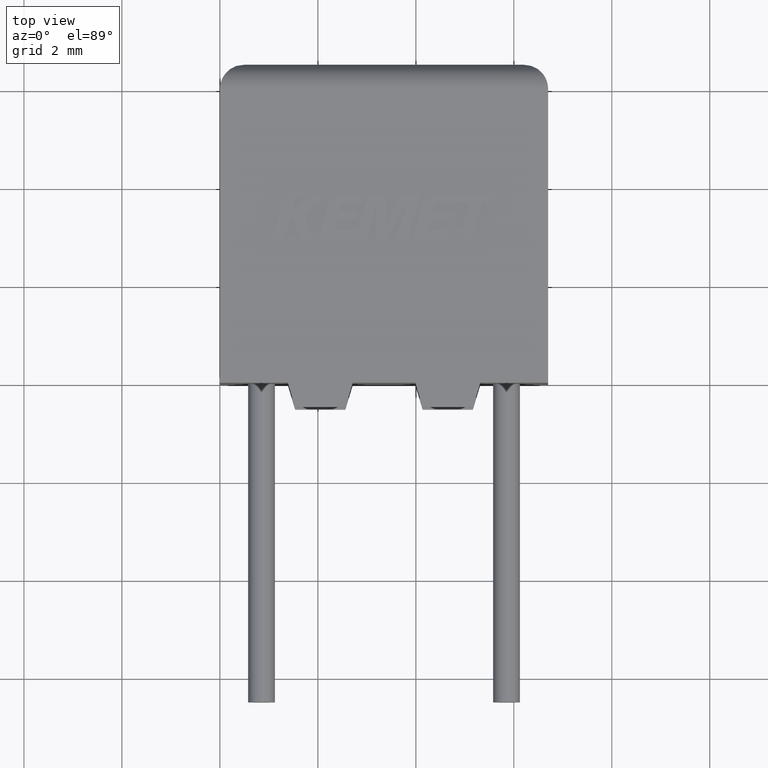
[diagram: clean part render]
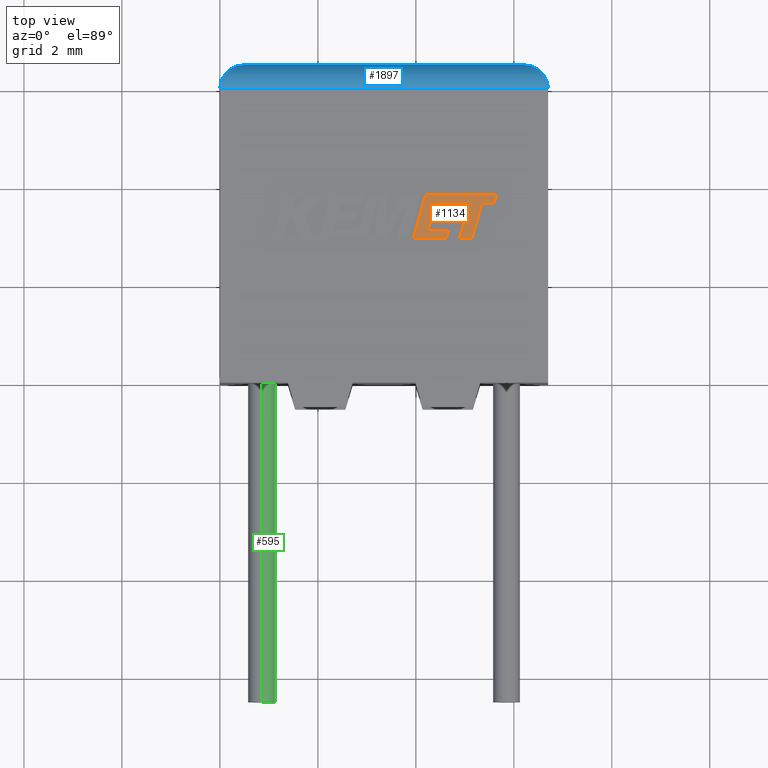
[diagram: same view with three faces highlighted in distinct colors, each labeled with its STEP entity id]
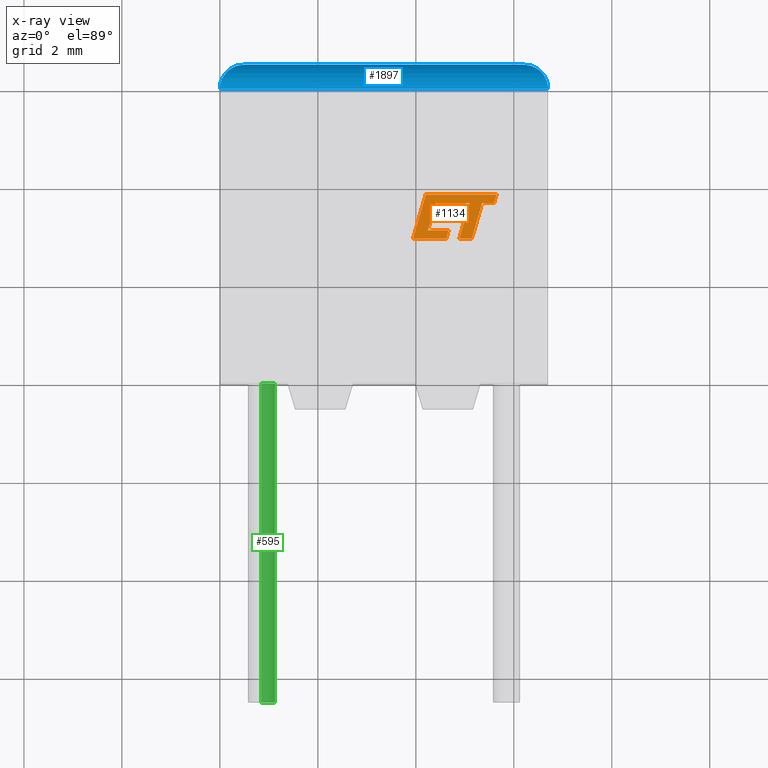
[diagram: x-ray of the same camera — body ghosted, the three highlighted faces saturated]
A machine part, top view with three faces highlighted in distinct colors.
The next image is the same camera in x-ray (body ghosted, the three faces saturated) — at least one of them is partly hidden behind the body in this view.
Their STEP definitions:

[orange] entity #1134 — the highlighted planar face has unit normal (0, 0, 1).
#14 = DIRECTION ( 'NONE',  ( 0.9999891854650020395, -0.004650693823678666954, 0.000000000000000000 ) ) ;
#93 = CARTESIAN_POINT ( 'NONE',  ( 4.359792918353027069, 3.501551121598226679, 3.004999999999999893 ) ) ;
#100 = EDGE_CURVE ( 'NONE', #2001, #218, #3031, .T. ) ;
#136 = DIRECTION ( 'NONE',  ( -1.000000000000000000, 0.000000000000000000, 0.000000000000000000 ) ) ;
#141 = VECTOR ( 'NONE', #3046, 1000.000000000000000 ) ;
#145 = VECTOR ( 'NONE', #1076, 1000.000000000000000 ) ;
#152 = VERTEX_POINT ( 'NONE', #644 ) ;
#157 = DIRECTION ( 'NONE',  ( -1.000000000000000000, 0.000000000000000000, 0.000000000000000000 ) ) ;
#184 = EDGE_CURVE ( 'NONE', #2309, #3203, #3111, .T. ) ;
#218 = VERTEX_POINT ( 'NONE', #624 ) ;
#230 = ORIENTED_EDGE ( 'NONE', *, *, #2054, .T. ) ;
#251 = CARTESIAN_POINT ( 'NONE',  ( 4.821213937587501164, 3.667891821823610510, 3.004999999999999893 ) ) ;
#273 = ORIENTED_EDGE ( 'NONE', *, *, #2510, .T. ) ;
#335 = DIRECTION ( 'NONE',  ( 1.000000000000000000, 0.000000000000000000, 0.000000000000000000 ) ) ;
#375 = ORIENTED_EDGE ( 'NONE', *, *, #184, .T. ) ;
#396 = DIRECTION ( 'NONE',  ( 0.9999999968487351953, -7.938847109813095698E-05, 0.000000000000000000 ) ) ;
#410 = LINE ( 'NONE', #1673, #940 ) ;
#445 = VERTEX_POINT ( 'NONE', #1681 ) ;
#463 = VECTOR ( 'NONE', #2645, 1000.000000000000000 ) ;
#468 = DIRECTION ( 'NONE',  ( 0.2746918797667246004, 0.9615323037684294638, 0.000000000000000000 ) ) ;
#499 = CARTESIAN_POINT ( 'NONE',  ( 4.698706481735150042, 3.335100893025698010, 3.004999999999999893 ) ) ;
#509 = ORIENTED_EDGE ( 'NONE', *, *, #1341, .T. ) ;
#526 = ORIENTED_EDGE ( 'NONE', *, *, #794, .T. ) ;
#543 = EDGE_CURVE ( 'NONE', #1899, #2935, #1973, .T. ) ;
#572 = CARTESIAN_POINT ( 'NONE',  ( 4.202334967772604735, 3.840497543485196008, 3.004999999999999893 ) ) ;
#607 = CARTESIAN_POINT ( 'NONE',  ( 4.886065671704187707, 2.939949999999972530, 3.004999999999999893 ) ) ;
#624 = CARTESIAN_POINT ( 'NONE',  ( 4.408533032661648754, 3.669052822299576189, 3.004999999999999893 ) ) ;
#639 = DIRECTION ( 'NONE',  ( -0.2763173343569911289, -0.9610664548998922863, 0.000000000000000000 ) ) ;
#644 = CARTESIAN_POINT ( 'NONE',  ( 4.698706481735150042, 3.335100893025698010, 3.004999999999999893 ) ) ;
#672 = PLANE ( 'NONE',  #2657 ) ;
#681 = ORIENTED_EDGE ( 'NONE', *, *, #1896, .T. ) ;
#725 = VECTOR ( 'NONE', #2265, 1000.000000000000114 ) ;
#794 = EDGE_CURVE ( 'NONE', #2821, #3113, #1252, .T. ) ;
#821 = CARTESIAN_POINT ( 'NONE',  ( 5.598024176641009042, 3.666598980641091909, 3.004999999999999893 ) ) ;
#845 = ORIENTED_EDGE ( 'NONE', *, *, #2734, .T. ) ;
#858 = ORIENTED_EDGE ( 'NONE', *, *, #1360, .T. ) ;
#860 = LINE ( 'NONE', #2609, #3142 ) ;
#865 = EDGE_CURVE ( 'NONE', #2434, #1207, #2728, .T. ) ;
#904 = CARTESIAN_POINT ( 'NONE',  ( 0.03041219601240493370, -2.057123217232910584, 3.004999999999999893 ) ) ;
#918 = CARTESIAN_POINT ( 'NONE',  ( 5.142597489070165118, 2.939949999999972530, 3.004999999999999893 ) ) ;
#930 = CARTESIAN_POINT ( 'NONE',  ( 4.672321103000238729, 3.111312574923809304, 3.004999999999999893 ) ) ;
#940 = VECTOR ( 'NONE', #396, 1000.000000000000114 ) ;
#950 = VECTOR ( 'NONE', #2159, 1000.000000000000000 ) ;
#952 = DIRECTION ( 'NONE',  ( 1.000000000000000000, 0.000000000000000000, 0.000000000000000000 ) ) ;
#979 = VECTOR ( 'NONE', #2166, 1000.000000000000114 ) ;
#1022 = CARTESIAN_POINT ( 'NONE',  ( 5.647999616669466150, 3.840497543485196008, 3.004999999999999893 ) ) ;
#1028 = EDGE_CURVE ( 'NONE', #2942, #2997, #2055, .T. ) ;
#1052 = VECTOR ( 'NONE', #639, 1000.000000000000114 ) ;
#1076 = DIRECTION ( 'NONE',  ( -1.000000000000000000, 0.000000000000000000, 0.000000000000000000 ) ) ;
#1100 = VECTOR ( 'NONE', #468, 1000.000000000000114 ) ;
#1131 = CARTESIAN_POINT ( 'NONE',  ( 3.943305903377329003, 2.939949999999972530, 3.004999999999999893 ) ) ;
#1134 = ADVANCED_FACE ( 'NONE', ( #3144 ), #672, .T. ) ;
#1146 = ORIENTED_EDGE ( 'NONE', *, *, #2869, .T. ) ;
#1188 = VERTEX_POINT ( 'NONE', #918 ) ;
#1207 = VERTEX_POINT ( 'NONE', #1468 ) ;
#1252 = LINE ( 'NONE', #1486, #1446 ) ;
#1313 = ORIENTED_EDGE ( 'NONE', *, *, #1028, .T. ) ;
#1333 = LINE ( 'NONE', #2601, #2823 ) ;
#1341 = EDGE_CURVE ( 'NONE', #1188, #1494, #3056, .T. ) ;
#1349 = LINE ( 'NONE', #1536, #145 ) ;
#1360 = EDGE_CURVE ( 'NONE', #2997, #2309, #1349, .T. ) ;
#1366 = CARTESIAN_POINT ( 'NONE',  ( 4.746258213481441501, 3.501551121598226679, 3.004999999999999893 ) ) ;
#1367 = CARTESIAN_POINT ( 'NONE',  ( 4.202334967772604735, 3.840497543485196008, 3.004999999999999893 ) ) ;
#1377 = LINE ( 'NONE', #930, #2826 ) ;
#1414 = CARTESIAN_POINT ( 'NONE',  ( 5.351462569925370616, 3.666618554790142426, 3.004999999999999893 ) ) ;
#1429 = LINE ( 'NONE', #1366, #3138 ) ;
#1446 = VECTOR ( 'NONE', #14, 1000.000000000000227 ) ;
#1449 = CARTESIAN_POINT ( 'NONE',  ( 4.359792918353027069, 3.501551121598226679, 3.004999999999999893 ) ) ;
#1468 = CARTESIAN_POINT ( 'NONE',  ( 4.312295950780125509, 3.335100893025698010, 3.004999999999999893 ) ) ;
#1484 = EDGE_CURVE ( 'NONE', #3203, #1899, #2881, .T. ) ;
#1486 = CARTESIAN_POINT ( 'NONE',  ( 4.821213937587501164, 3.667891821823610510, 3.004999999999999893 ) ) ;
#1494 = VERTEX_POINT ( 'NONE', #1414 ) ;
#1536 = CARTESIAN_POINT ( 'NONE',  ( 5.647999616669466150, 3.840497543485196008, 3.004999999999999893 ) ) ;
#1649 = CARTESIAN_POINT ( 'NONE',  ( 5.094990993150579683, 3.666618554792447693, 3.004999999999999893 ) ) ;
#1671 = DIRECTION ( 'NONE',  ( 0.000000000000000000, 0.000000000000000000, 1.000000000000000000 ) ) ;
#1673 = CARTESIAN_POINT ( 'NONE',  ( 5.351462569925370616, 3.666618554790142426, 3.004999999999999893 ) ) ;
#1681 = CARTESIAN_POINT ( 'NONE',  ( 4.746258213481441501, 3.501551121598226679, 3.004999999999999893 ) ) ;
#1712 = EDGE_LOOP ( 'NONE', ( #2273, #526, #845, #2237, #509, #230, #1313, #858, #375, #2023, #2918, #273, #3246, #681, #1146, #1755, #1912 ) ) ;
#1755 = ORIENTED_EDGE ( 'NONE', *, *, #2470, .T. ) ;
#1771 = VECTOR ( 'NONE', #1789, 1000.000000000000114 ) ;
#1789 = DIRECTION ( 'NONE',  ( 0.2793947940814911490, 0.9601763114346036909, 0.000000000000000000 ) ) ;
#1790 = CARTESIAN_POINT ( 'NONE',  ( 4.248408066114440551, 3.111312574923809304, 3.004999999999999893 ) ) ;
#1827 = LINE ( 'NONE', #2639, #950 ) ;
#1896 = EDGE_CURVE ( 'NONE', #1207, #152, #1333, .T. ) ;
#1899 = VERTEX_POINT ( 'NONE', #2358 ) ;
#1912 = ORIENTED_EDGE ( 'NONE', *, *, #100, .T. ) ;
#1973 = LINE ( 'NONE', #3233, #725 ) ;
#2001 = VERTEX_POINT ( 'NONE', #1449 ) ;
#2023 = ORIENTED_EDGE ( 'NONE', *, *, #1484, .T. ) ;
#2054 = EDGE_CURVE ( 'NONE', #1494, #2942, #410, .T. ) ;
#2055 = LINE ( 'NONE', #821, #141 ) ;
#2159 = DIRECTION ( 'NONE',  ( 1.000000000000000000, 0.000000000000000000, 0.000000000000000000 ) ) ;
#2166 = DIRECTION ( 'NONE',  ( -0.2764273280489772389, -0.9610348236706633962, 0.000000000000000000 ) ) ;
#2237 = ORIENTED_EDGE ( 'NONE', *, *, #3146, .T. ) ;
#2265 = DIRECTION ( 'NONE',  ( 0.2729786930695575209, 0.9620200793798622252, 0.000000000000000000 ) ) ;
#2273 = ORIENTED_EDGE ( 'NONE', *, *, #3195, .T. ) ;
#2278 = DIRECTION ( 'NONE',  ( 0.2745159998572696547, 0.9615825319869134580, 0.000000000000000000 ) ) ;
#2309 = VERTEX_POINT ( 'NONE', #572 ) ;
#2345 = CARTESIAN_POINT ( 'NONE',  ( 3.943305903377329003, 2.939949999999972530, 3.004999999999999893 ) ) ;
#2355 = VERTEX_POINT ( 'NONE', #607 ) ;
#2358 = CARTESIAN_POINT ( 'NONE',  ( 4.623695993455855024, 2.939949999999972530, 3.004999999999999893 ) ) ;
#2434 = VERTEX_POINT ( 'NONE', #2910 ) ;
#2470 = EDGE_CURVE ( 'NONE', #445, #2001, #1429, .T. ) ;
#2510 = EDGE_CURVE ( 'NONE', #2935, #2434, #1377, .T. ) ;
#2529 = CARTESIAN_POINT ( 'NONE',  ( 5.598024176641009042, 3.666598980641091909, 3.004999999999999893 ) ) ;
#2580 = DIRECTION ( 'NONE',  ( 0.2762437428917420279, 0.9610876102172793978, 0.000000000000000000 ) ) ;
#2601 = CARTESIAN_POINT ( 'NONE',  ( 4.312295950780125509, 3.335100893025698010, 3.004999999999999893 ) ) ;
#2605 = VECTOR ( 'NONE', #2580, 1000.000000000000114 ) ;
#2609 = CARTESIAN_POINT ( 'NONE',  ( 4.408533032661648754, 3.669052822299576189, 3.004999999999999893 ) ) ;
#2627 = DIRECTION ( 'NONE',  ( 0.9999960426590096541, -0.002813301676023192543, 0.000000000000000000 ) ) ;
#2639 = CARTESIAN_POINT ( 'NONE',  ( 4.886065671704187707, 2.939949999999972530, 3.004999999999999893 ) ) ;
#2645 = DIRECTION ( 'NONE',  ( 1.000000000000000000, 0.000000000000000000, 0.000000000000000000 ) ) ;
#2657 = AXIS2_PLACEMENT_3D ( 'NONE', #904, #1671, #952 ) ;
#2728 = LINE ( 'NONE', #1790, #3179 ) ;
#2732 = LINE ( 'NONE', #499, #1100 ) ;
#2734 = EDGE_CURVE ( 'NONE', #3113, #2355, #3154, .T. ) ;
#2778 = CARTESIAN_POINT ( 'NONE',  ( 4.672321103000238729, 3.111312574923809304, 3.004999999999999893 ) ) ;
#2786 = CARTESIAN_POINT ( 'NONE',  ( 5.142597489070165118, 2.939949999999972530, 3.004999999999999893 ) ) ;
#2821 = VERTEX_POINT ( 'NONE', #251 ) ;
#2823 = VECTOR ( 'NONE', #335, 1000.000000000000000 ) ;
#2826 = VECTOR ( 'NONE', #136, 1000.000000000000000 ) ;
#2869 = EDGE_CURVE ( 'NONE', #152, #445, #2732, .T. ) ;
#2881 = LINE ( 'NONE', #1131, #463 ) ;
#2910 = CARTESIAN_POINT ( 'NONE',  ( 4.248408066114440551, 3.111312574923809304, 3.004999999999999893 ) ) ;
#2918 = ORIENTED_EDGE ( 'NONE', *, *, #543, .T. ) ;
#2935 = VERTEX_POINT ( 'NONE', #2778 ) ;
#2942 = VERTEX_POINT ( 'NONE', #2529 ) ;
#2997 = VERTEX_POINT ( 'NONE', #1022 ) ;
#3031 = LINE ( 'NONE', #93, #1771 ) ;
#3046 = DIRECTION ( 'NONE',  ( 0.2762033010287925916, 0.9610992334305538121, 0.000000000000000000 ) ) ;
#3056 = LINE ( 'NONE', #2786, #2605 ) ;
#3111 = LINE ( 'NONE', #1367, #979 ) ;
#3113 = VERTEX_POINT ( 'NONE', #3115 ) ;
#3115 = CARTESIAN_POINT ( 'NONE',  ( 5.094990993150579683, 3.666618554792447693, 3.004999999999999893 ) ) ;
#3138 = VECTOR ( 'NONE', #157, 1000.000000000000000 ) ;
#3142 = VECTOR ( 'NONE', #2627, 999.9999999999998863 ) ;
#3144 = FACE_OUTER_BOUND ( 'NONE', #1712, .T. ) ;
#3146 = EDGE_CURVE ( 'NONE', #2355, #1188, #1827, .T. ) ;
#3154 = LINE ( 'NONE', #1649, #1052 ) ;
#3179 = VECTOR ( 'NONE', #2278, 1000.000000000000114 ) ;
#3195 = EDGE_CURVE ( 'NONE', #218, #2821, #860, .T. ) ;
#3203 = VERTEX_POINT ( 'NONE', #2345 ) ;
#3233 = CARTESIAN_POINT ( 'NONE',  ( 4.623695993455855024, 2.939949999999972530, 3.004999999999999893 ) ) ;
#3246 = ORIENTED_EDGE ( 'NONE', *, *, #865, .T. ) ;

[blue] entity #1897 — the highlighted cylindrical surface (edge-blend (fillet) strip) has radius 0.5 mm, axis along (-1, 0, 0).
#4 = ORIENTED_EDGE ( 'NONE', *, *, #825, .F. ) ;
#96 = CARTESIAN_POINT ( 'NONE',  ( 0.000000000000000000, 6.000000000000000000, 2.500000000000000000 ) ) ;
#382 = DIRECTION ( 'NONE',  ( -1.000000000000000000, 0.000000000000000000, 0.000000000000000000 ) ) ;
#746 = CARTESIAN_POINT ( 'NONE',  ( 6.700000000000001066, 6.292893218813451206, 3.000000000000000888 ) ) ;
#759 = LINE ( 'NONE', #3229, #2919 ) ;
#818 = CARTESIAN_POINT ( 'NONE',  ( 6.200000000000001066, 6.500000000000000000, 2.500000000000000000 ) ) ;
#825 = EDGE_CURVE ( 'NONE', #1115, #2268, #759, .T. ) ;
#851 =( BOUNDED_CURVE ( )  B_SPLINE_CURVE ( 3, ( #1656, #1692, #2947, #1166 ),
 .UNSPECIFIED., .F., .F. ) 
 B_SPLINE_CURVE_WITH_KNOTS ( ( 4, 4 ),
 ( 1.570796326794896780, 3.141592653589796669 ),
 .UNSPECIFIED. ) 
 CURVE ( )  GEOMETRIC_REPRESENTATION_ITEM ( )  RATIONAL_B_SPLINE_CURVE ( ( 1.000000000000000000, 0.8047378541243641603, 0.8047378541243641603, 1.000000000000000000 ) ) 
 REPRESENTATION_ITEM ( '' )  );
#908 = EDGE_CURVE ( 'NONE', #2268, #2428, #1860, .T. ) ;
#997 = VECTOR ( 'NONE', #1803, 1000.000000000000000 ) ;
#1044 = CARTESIAN_POINT ( 'NONE',  ( 0.000000000000000000, 5.999999999999998224, 3.000000000000000000 ) ) ;
#1115 = VERTEX_POINT ( 'NONE', #2371 ) ;
#1166 = CARTESIAN_POINT ( 'NONE',  ( 0.000000000000000000, 5.999999999999998224, 3.000000000000000000 ) ) ;
#1315 = LINE ( 'NONE', #1552, #997 ) ;
#1504 = CARTESIAN_POINT ( 'NONE',  ( 6.492893218813454048, 6.500000000000000888, 2.792893218813453426 ) ) ;
#1552 = CARTESIAN_POINT ( 'NONE',  ( 0.000000000000000000, 6.000000000000000000, 3.000000000000000000 ) ) ;
#1553 = VERTEX_POINT ( 'NONE', #1044 ) ;
#1656 = CARTESIAN_POINT ( 'NONE',  ( 0.5000000000000000000, 6.500000000000000000, 2.500000000000000000 ) ) ;
#1685 = EDGE_LOOP ( 'NONE', ( #1868, #2774, #2610, #4 ) ) ;
#1692 = CARTESIAN_POINT ( 'NONE',  ( 0.2071067811865467123, 6.500000000000000888, 2.792893218813453426 ) ) ;
#1803 = DIRECTION ( 'NONE',  ( -1.000000000000000000, 0.000000000000000000, 0.000000000000000000 ) ) ;
#1820 = CYLINDRICAL_SURFACE ( 'NONE', #2249, 0.5000000000000000000 ) ;
#1860 =( BOUNDED_CURVE ( )  B_SPLINE_CURVE ( 3, ( #2790, #1504, #746, #3014 ),
 .UNSPECIFIED., .F., .F. ) 
 B_SPLINE_CURVE_WITH_KNOTS ( ( 4, 4 ),
 ( 1.570796326794896558, 3.141592653589796669 ),
 .UNSPECIFIED. ) 
 CURVE ( )  GEOMETRIC_REPRESENTATION_ITEM ( )  RATIONAL_B_SPLINE_CURVE ( ( 1.000000000000000000, 0.8047378541243641603, 0.8047378541243641603, 1.000000000000000000 ) ) 
 REPRESENTATION_ITEM ( '' )  );
#1868 = ORIENTED_EDGE ( 'NONE', *, *, #2028, .T. ) ;
#1897 = ADVANCED_FACE ( 'NONE', ( #2108 ), #1820, .T. ) ;
#1988 = DIRECTION ( 'NONE',  ( 1.000000000000000000, -0.000000000000000000, -0.000000000000000000 ) ) ;
#2028 = EDGE_CURVE ( 'NONE', #1115, #1553, #851, .T. ) ;
#2108 = FACE_OUTER_BOUND ( 'NONE', #1685, .T. ) ;
#2132 = CARTESIAN_POINT ( 'NONE',  ( 6.700000000000000178, 5.999999999999998224, 3.000000000000000000 ) ) ;
#2249 = AXIS2_PLACEMENT_3D ( 'NONE', #96, #382, #2820 ) ;
#2268 = VERTEX_POINT ( 'NONE', #818 ) ;
#2344 = EDGE_CURVE ( 'NONE', #2428, #1553, #1315, .T. ) ;
#2371 = CARTESIAN_POINT ( 'NONE',  ( 0.5000000000000000000, 6.500000000000000000, 2.500000000000000000 ) ) ;
#2428 = VERTEX_POINT ( 'NONE', #2132 ) ;
#2610 = ORIENTED_EDGE ( 'NONE', *, *, #908, .F. ) ;
#2774 = ORIENTED_EDGE ( 'NONE', *, *, #2344, .F. ) ;
#2790 = CARTESIAN_POINT ( 'NONE',  ( 6.200000000000001066, 6.500000000000000000, 2.500000000000000000 ) ) ;
#2820 = DIRECTION ( 'NONE',  ( 0.000000000000000000, 0.000000000000000000, 1.000000000000000000 ) ) ;
#2919 = VECTOR ( 'NONE', #1988, 1000.000000000000000 ) ;
#2947 = CARTESIAN_POINT ( 'NONE',  ( -8.962764533667268895E-16, 6.292893218813451206, 3.000000000000000888 ) ) ;
#3014 = CARTESIAN_POINT ( 'NONE',  ( 6.700000000000000178, 5.999999999999998224, 3.000000000000000000 ) ) ;
#3229 = CARTESIAN_POINT ( 'NONE',  ( 0.000000000000000000, 6.500000000000000000, 2.500000000000000000 ) ) ;

[green] entity #595 — the highlighted cylindrical surface (edge-blend (fillet) strip) has radius 0.275 mm, axis along (-0, 1, -0).
#9 = CARTESIAN_POINT ( 'NONE',  ( 0.8499999999999996447, -6.500000000000000000, 1.499999999999999334 ) ) ;
#269 = ORIENTED_EDGE ( 'NONE', *, *, #529, .T. ) ;
#281 = VERTEX_POINT ( 'NONE', #2485 ) ;
#289 = EDGE_CURVE ( 'NONE', #281, #1020, #3017, .T. ) ;
#480 = VERTEX_POINT ( 'NONE', #910 ) ;
#493 = LINE ( 'NONE', #1969, #3192 ) ;
#528 = DIRECTION ( 'NONE',  ( 0.000000000000000000, 0.000000000000000000, 1.000000000000000000 ) ) ;
#529 = EDGE_CURVE ( 'NONE', #480, #2164, #2813, .T. ) ;
#595 = ADVANCED_FACE ( 'NONE', ( #797 ), #777, .T. ) ;
#659 = LINE ( 'NONE', #2636, #3190 ) ;
#777 = CYLINDRICAL_SURFACE ( 'NONE', #2549, 0.2750000000000000777 ) ;
#797 = FACE_OUTER_BOUND ( 'NONE', #3216, .T. ) ;
#910 = CARTESIAN_POINT ( 'NONE',  ( 0.8499999999999996447, 0.000000000000000000, 1.224999999999999201 ) ) ;
#934 = DIRECTION ( 'NONE',  ( -0.000000000000000000, 1.000000000000000000, -0.000000000000000000 ) ) ;
#1020 = VERTEX_POINT ( 'NONE', #1806 ) ;
#1032 = ORIENTED_EDGE ( 'NONE', *, *, #2035, .F. ) ;
#1426 = ORIENTED_EDGE ( 'NONE', *, *, #289, .F. ) ;
#1440 = AXIS2_PLACEMENT_3D ( 'NONE', #9, #1982, #1495 ) ;
#1474 = DIRECTION ( 'NONE',  ( -0.000000000000000000, -1.000000000000000000, -0.000000000000000000 ) ) ;
#1495 = DIRECTION ( 'NONE',  ( 0.000000000000000000, 0.000000000000000000, -1.000000000000000000 ) ) ;
#1774 = CARTESIAN_POINT ( 'NONE',  ( 0.8499999999999996447, -6.500000000000000000, 1.499999999999999334 ) ) ;
#1806 = CARTESIAN_POINT ( 'NONE',  ( 0.8499999999999996447, -6.500000000000000000, 1.774999999999999467 ) ) ;
#1913 = ORIENTED_EDGE ( 'NONE', *, *, #2195, .T. ) ;
#1969 = CARTESIAN_POINT ( 'NONE',  ( 0.8499999999999996447, -6.500000000000000000, 1.224999999999999201 ) ) ;
#1979 = AXIS2_PLACEMENT_3D ( 'NONE', #2251, #1474, #2296 ) ;
#1982 = DIRECTION ( 'NONE',  ( 0.000000000000000000, -1.000000000000000000, 0.000000000000000000 ) ) ;
#2004 = CARTESIAN_POINT ( 'NONE',  ( 0.8499999999999996447, 0.000000000000000000, 1.774999999999999467 ) ) ;
#2035 = EDGE_CURVE ( 'NONE', #1020, #2164, #659, .T. ) ;
#2164 = VERTEX_POINT ( 'NONE', #2004 ) ;
#2195 = EDGE_CURVE ( 'NONE', #281, #480, #493, .T. ) ;
#2251 = CARTESIAN_POINT ( 'NONE',  ( 0.8499999999999996447, 0.000000000000000000, 1.499999999999999334 ) ) ;
#2276 = DIRECTION ( 'NONE',  ( -0.000000000000000000, 1.000000000000000000, -0.000000000000000000 ) ) ;
#2296 = DIRECTION ( 'NONE',  ( 0.000000000000000000, 0.000000000000000000, 1.000000000000000000 ) ) ;
#2485 = CARTESIAN_POINT ( 'NONE',  ( 0.8499999999999996447, -6.500000000000000000, 1.224999999999999201 ) ) ;
#2549 = AXIS2_PLACEMENT_3D ( 'NONE', #1774, #2775, #528 ) ;
#2636 = CARTESIAN_POINT ( 'NONE',  ( 0.8499999999999996447, -6.500000000000000000, 1.774999999999999467 ) ) ;
#2775 = DIRECTION ( 'NONE',  ( -0.000000000000000000, 1.000000000000000000, -0.000000000000000000 ) ) ;
#2813 = CIRCLE ( 'NONE', #1979, 0.2750000000000000777 ) ;
#3017 = CIRCLE ( 'NONE', #1440, 0.2750000000000000777 ) ;
#3190 = VECTOR ( 'NONE', #934, 1000.000000000000000 ) ;
#3192 = VECTOR ( 'NONE', #2276, 1000.000000000000000 ) ;
#3216 = EDGE_LOOP ( 'NONE', ( #1426, #1913, #269, #1032 ) ) ;